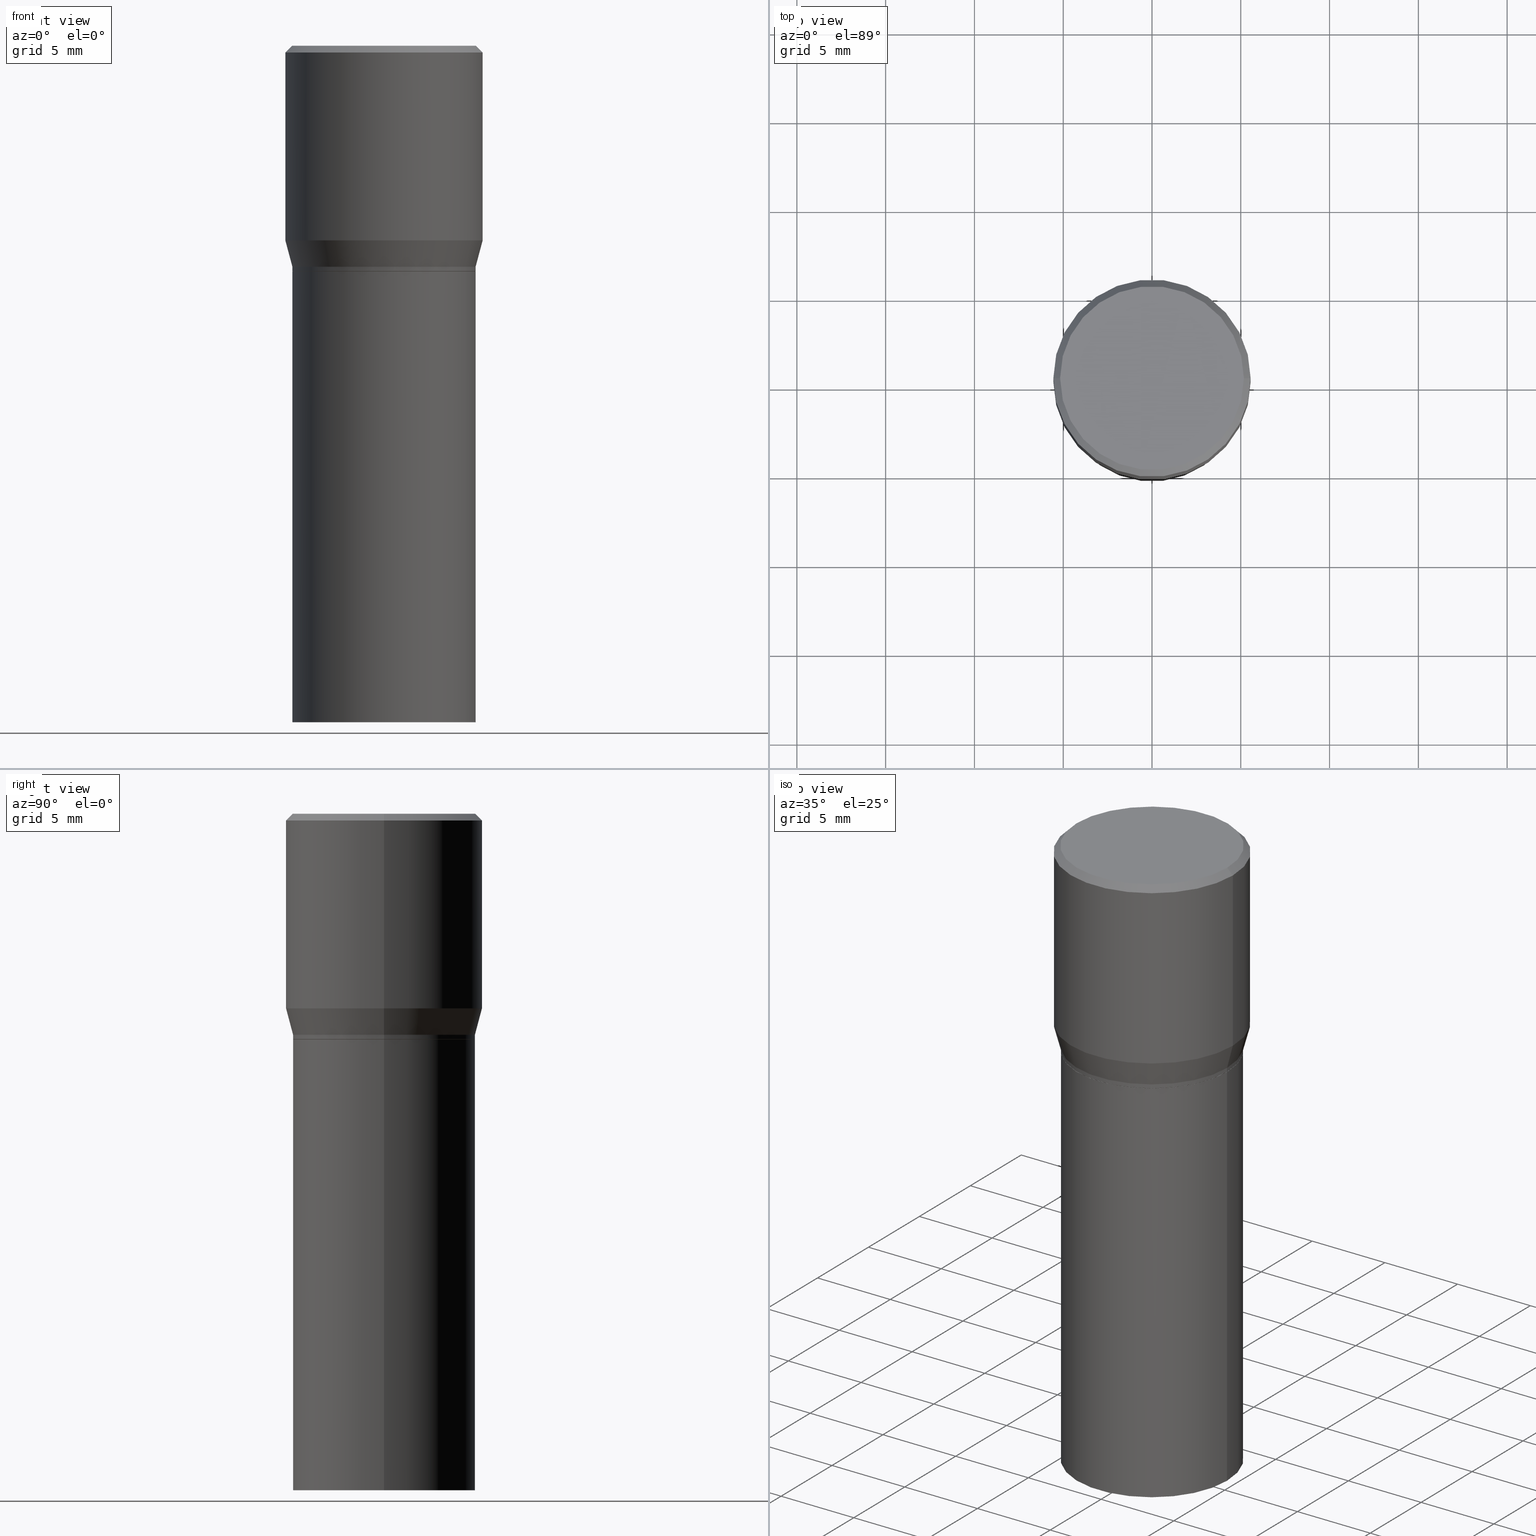
[diagram: canonical four-view strip — front | top / right | iso, engineering-drawing reading convention]
A machine part, canonical four-view strip (front | top / right | iso — engineering-drawing reading convention). The complete STEP part file that produces these views, byte-faithful:
ISO-10303-21;
HEADER;
FILE_DESCRIPTION (( 'STEP AP203' ),
    '1' );
FILE_NAME ('39351.STEP',
    '2024-03-12T18:59:55',
    ( '' ),
    ( '' ),
    'SwSTEP 2.0',
    'SolidWorks 2023',
    '' );
FILE_SCHEMA (( 'CONFIG_CONTROL_DESIGN' ));
ENDSEC;

DATA;
#1 = EDGE_CURVE ( 'NONE', #129, #3, #98, .T. ) ;
#2 = DIRECTION ( 'NONE',  ( 1.000000000000000000, -6.982962677686265133E-15, 0.000000000000000000 ) ) ;
#3 = VERTEX_POINT ( 'NONE', #119 ) ;
#4 = CARTESIAN_POINT ( 'NONE',  ( -0.2031000000000000583, -1.101508221355132898E-16, -0.4900000000000001021 ) ) ;
#5 = VECTOR ( 'NONE', #422, 39.37007874015748854 ) ;
#6 = CARTESIAN_POINT ( 'NONE',  ( 0.2031000000000000028, -1.418239719838080775E-15, 9.903515031641546145E-30 ) ) ;
#7 = CARTESIAN_POINT ( 'NONE',  ( 1.222734403092568719E-29, -1.745740669421573186E-15, -0.5000000000000001110 ) ) ;
#8 = PERSON_AND_ORGANIZATION ( #91, #67 ) ;
#9 = COORDINATED_UNIVERSAL_TIME_OFFSET ( 5, 0, .BEHIND. ) ;
#10 = FACE_OUTER_BOUND ( 'NONE', #403, .T. ) ;
#11 = LINE ( 'NONE', #161, #388 ) ;
#12 =( NAMED_UNIT ( * ) PLANE_ANGLE_UNIT ( ) SI_UNIT ( $, .RADIAN. ) );
#13 = ADVANCED_FACE ( 'NONE', ( #436 ), #65, .T. ) ;
#14 = AXIS2_PLACEMENT_3D ( 'NONE', #449, #177, #287 ) ;
#15 = CALENDAR_DATE ( 2024, 12, 3 ) ;
#16 = ORIENTED_EDGE ( 'NONE', *, *, #214, .F. ) ;
#17 = CALENDAR_DATE ( 2024, 12, 3 ) ;
#18 = ORIENTED_EDGE ( 'NONE', *, *, #460, .T. ) ;
#19 = CARTESIAN_POINT ( 'NONE',  ( 0.2031000000000000028, -3.163980389259653764E-15, -0.5000000000000001110 ) ) ;
#20 = PLANE ( 'NONE',  #452 ) ;
#21 = AXIS2_PLACEMENT_3D ( 'NONE', #198, #110, #122 ) ;
#22 = EDGE_LOOP ( 'NONE', ( #398, #429 ) ) ;
#23 = ORIENTED_EDGE ( 'NONE', *, *, #252, .T. ) ;
#24 = ADVANCED_FACE ( 'NONE', ( #109 ), #75, .T. ) ;
#25 = CIRCLE ( 'NONE', #104, 0.2031000000000000028 ) ;
#26 = CARTESIAN_POINT ( 'NONE',  ( 0.2031000000000000028, -3.162234648590232655E-15, -0.4995000000000001661 ) ) ;
#27 = DIRECTION ( 'NONE',  ( 1.000000000000000000, -6.982962677686268288E-15, 0.000000000000000000 ) ) ;
#28 = CARTESIAN_POINT ( 'NONE',  ( -0.2187500000000000000, 4.741191543335144142E-17, -0.4315934048615475138 ) ) ;
#29 = DIRECTION ( 'NONE',  ( -1.000000000000000000, 6.982962677686266711E-15, 0.000000000000000000 ) ) ;
#30 = CARTESIAN_POINT ( 'NONE',  ( 0.000000000000000000, 0.000000000000000000, 0.000000000000000000 ) ) ;
#31 = VECTOR ( 'NONE', #37, 39.37007874015748854 ) ;
#32 = EDGE_LOOP ( 'NONE', ( #415, #432, #111, #72 ) ) ;
#33 = DIRECTION ( 'NONE',  ( -2.445468806185136597E-29, 3.491481338843145583E-15, 1.000000000000000000 ) ) ;
#34 = DIRECTION ( 'NONE',  ( -2.445468806185136597E-29, 3.491481338843145583E-15, 1.000000000000000000 ) ) ;
#35 = DIRECTION ( 'NONE',  ( -2.445468806185136597E-29, 3.491481338843145583E-15, 1.000000000000000000 ) ) ;
#36 = CYLINDRICAL_SURFACE ( 'NONE', #199, 0.2031000000000000028 ) ;
#37 = DIRECTION ( 'NONE',  ( 0.2588190451025211836, 1.565188264969622559E-15, 0.9659258262890679791 ) ) ;
#38 = LINE ( 'NONE', #234, #370 ) ;
#39 = ADVANCED_FACE ( 'NONE', ( #120 ), #36, .T. ) ;
#40 = APPLICATION_PROTOCOL_DEFINITION ( 'international standard', 'config_control_design', 1994, #306 ) ;
#41 = CONICAL_SURFACE ( 'NONE', #353, 0.2026000000000000023, 0.7853981633974824739 ) ;
#42 = ORIENTED_EDGE ( 'NONE', *, *, #63, .T. ) ;
#43 = MECHANICAL_CONTEXT ( 'NONE', #306, 'mechanical' ) ;
#44 = CARTESIAN_POINT ( 'NONE',  ( 0.2031000000000000583, -3.129065575871222509E-15, -0.4900000000000001021 ) ) ;
#45 = DATE_TIME_ROLE ( 'classification_date' ) ;
#46 = CC_DESIGN_PERSON_AND_ORGANIZATION_ASSIGNMENT ( #235, #314, ( #437 ) ) ;
#47 = PLANE ( 'NONE',  #244 ) ;
#48 = PERSON_AND_ORGANIZATION_ROLE ( 'design_supplier' ) ;
#49 = AXIS2_PLACEMENT_3D ( 'NONE', #277, #310, #86 ) ;
#50 = AXIS2_PLACEMENT_3D ( 'NONE', #61, #419, #168 ) ;
#51 = DATE_AND_TIME ( #411, #89 ) ;
#52 = ADVANCED_FACE ( 'NONE', ( #438 ), #413, .T. ) ;
#53 = LINE ( 'NONE', #108, #99 ) ;
#54 = VERTEX_POINT ( 'NONE', #4 ) ;
#55 = FACE_OUTER_BOUND ( 'NONE', #464, .T. ) ;
#56 = CC_DESIGN_PERSON_AND_ORGANIZATION_ASSIGNMENT ( #124, #404, ( #241 ) ) ;
#57 = EDGE_CURVE ( 'NONE', #269, #176, #446, .T. ) ;
#58 = PLANE ( 'NONE',  #142 ) ;
#59 = EDGE_CURVE ( 'NONE', #269, #265, #38, .T. ) ;
#60 = VERTEX_POINT ( 'NONE', #44 ) ;
#61 = CARTESIAN_POINT ( 'NONE',  ( 0.000000000000000000, 0.000000000000000000, 0.000000000000000000 ) ) ;
#62 = MANIFOLD_SOLID_BREP ( 'Body-Move/Copy2[1]', #153 ) ;
#63 = EDGE_CURVE ( 'NONE', #151, #363, #308, .T. ) ;
#64 = CARTESIAN_POINT ( 'NONE',  ( -0.2187500000000000000, 1.554312234475219157E-15, -1.076017050993260622E-29 ) ) ;
#65 = CONICAL_SURFACE ( 'NONE', #266, 0.2031000000000000583, 0.2617993877991499074 ) ;
#66 = AXIS2_PLACEMENT_3D ( 'NONE', #264, #441, #409 ) ;
#67 = ORGANIZATION ( 'UNSPECIFIED', 'UNSPECIFIED', '' ) ;
#68 = DIRECTION ( 'NONE',  ( 1.000000000000000000, -6.982962677686266711E-15, 0.000000000000000000 ) ) ;
#69 = DIRECTION ( 'NONE',  ( 1.000000000000000000, -6.982962677686265922E-15, 0.000000000000000000 ) ) ;
#70 = EDGE_CURVE ( 'NONE', #450, #211, #11, .T. ) ;
#71 = ORIENTED_EDGE ( 'NONE', *, *, #319, .F. ) ;
#72 = ORIENTED_EDGE ( 'NONE', *, *, #356, .F. ) ;
#73 = AXIS2_PLACEMENT_3D ( 'NONE', #30, #216, #188 ) ;
#74 = ORIENTED_EDGE ( 'NONE', *, *, #162, .T. ) ;
#75 = CYLINDRICAL_SURFACE ( 'NONE', #323, 0.2031000000000000028 ) ;
#76 = EDGE_CURVE ( 'NONE', #54, #223, #451, .T. ) ;
#77 = ORIENTED_EDGE ( 'NONE', *, *, #303, .F. ) ;
#78 = APPROVAL_DATE_TIME ( #170, #280 ) ;
#79 = CARTESIAN_POINT ( 'NONE',  ( 0.000000000000000000, 0.000000000000000000, 0.000000000000000000 ) ) ;
#80 = CALENDAR_DATE ( 2024, 12, 3 ) ;
#81 = FACE_OUTER_BOUND ( 'NONE', #191, .T. ) ;
#82 = APPROVAL_PERSON_ORGANIZATION ( #84, #116, #439 ) ;
#83 = DIRECTION ( 'NONE',  ( -2.445468806185136597E-29, 3.491481338843145583E-15, 1.000000000000000000 ) ) ;
#84 = PERSON_AND_ORGANIZATION ( #91, #67 ) ;
#85 = ORIENTED_EDGE ( 'NONE', *, *, #221, .F. ) ;
#86 = DIRECTION ( 'NONE',  ( 1.000000000000000000, -6.982962677686268288E-15, 0.000000000000000000 ) ) ;
#87 = COORDINATED_UNIVERSAL_TIME_OFFSET ( 5, 0, .BEHIND. ) ;
#88 = CIRCLE ( 'NONE', #381, 0.2031000000000000028 ) ;
#89 = LOCAL_TIME ( 14, 59, 55.00000000000000000, #9 ) ;
#90 = FACE_OUTER_BOUND ( 'NONE', #97, .T. ) ;
#91 = PERSON ( 'UNSPECIFIED', 'UNSPECIFIED', 'UNSPECIFIED', ('UNSPECIFIED'), ('UNSPECIFIED'), ('UNSPECIFIED') ) ;
#92 = EDGE_LOOP ( 'NONE', ( #112, #355, #459, #281 ) ) ;
#93 = CARTESIAN_POINT ( 'NONE',  ( 1.222734403092568719E-29, -1.745740669421573186E-15, -0.5000000000000001110 ) ) ;
#94 = ADVANCED_FACE ( 'NONE', ( #246 ), #58, .F. ) ;
#95 = PLANE ( 'NONE',  #14 ) ;
#96 = CYLINDRICAL_SURFACE ( 'NONE', #50, 0.2187500000000000000 ) ;
#97 = EDGE_LOOP ( 'NONE', ( #226, #360 ) ) ;
#98 = CIRCLE ( 'NONE', #164, 0.2031000000000000028 ) ;
#99 = VECTOR ( 'NONE', #293, 39.37007874015748143 ) ;
#100 = ADVANCED_FACE ( 'NONE', ( #90 ), #95, .F. ) ;
#101 = CARTESIAN_POINT ( 'NONE',  ( 1.198279715030717173E-29, -1.710825856033141537E-15, -0.4900000000000001021 ) ) ;
#102 = LINE ( 'NONE', #184, #173 ) ;
#103 = AXIS2_PLACEMENT_3D ( 'NONE', #275, #367, #405 ) ;
#104 = AXIS2_PLACEMENT_3D ( 'NONE', #313, #181, #185 ) ;
#105 = DIRECTION ( 'NONE',  ( 1.000000000000000000, -6.982962677686264344E-15, 0.000000000000000000 ) ) ;
#106 = CC_DESIGN_DATE_AND_TIME_ASSIGNMENT ( #243, #45, ( #155 ) ) ;
#107 = ORIENTED_EDGE ( 'NONE', *, *, #63, .F. ) ;
#108 = CARTESIAN_POINT ( 'NONE',  ( 0.2187500000000000000, -1.553106157095169608E-15, -0.01499999999999999944 ) ) ;
#109 = FACE_OUTER_BOUND ( 'NONE', #32, .T. ) ;
#110 = DIRECTION ( 'NONE',  ( -2.445468806185136597E-29, 3.491481338843145583E-15, 1.000000000000000000 ) ) ;
#111 = ORIENTED_EDGE ( 'NONE', *, *, #396, .F. ) ;
#112 = ORIENTED_EDGE ( 'NONE', *, *, #57, .T. ) ;
#113 = ORIENTED_EDGE ( 'NONE', *, *, #1, .F. ) ;
#114 = AXIS2_PLACEMENT_3D ( 'NONE', #101, #457, #453 ) ;
#115 = FACE_OUTER_BOUND ( 'NONE', #395, .T. ) ;
#116 = APPROVAL ( #279, 'UNSPECIFIED' ) ;
#117 = CARTESIAN_POINT ( 'NONE',  ( 3.668203209277705088E-31, -5.237222008264718399E-17, -0.01499999999999999944 ) ) ;
#118 = ORIENTED_EDGE ( 'NONE', *, *, #303, .T. ) ;
#119 = CARTESIAN_POINT ( 'NONE',  ( -0.2031000000000000028, -2.048369042514382480E-15, -0.5000000000000001110 ) ) ;
#120 = FACE_OUTER_BOUND ( 'NONE', #157, .T. ) ;
#121 = DATE_AND_TIME ( #200, #183 ) ;
#122 = DIRECTION ( 'NONE',  ( 1.000000000000000000, -6.982962677686265133E-15, 0.000000000000000000 ) ) ;
#123 = CARTESIAN_POINT ( 'NONE',  ( 3.668203209277705088E-31, -5.237222008264718399E-17, -0.01499999999999999944 ) ) ;
#124 = PERSON_AND_ORGANIZATION ( #91, #67 ) ;
#125 = CONICAL_SURFACE ( 'NONE', #49, 0.2026000000000000023, 0.7853981633974824739 ) ;
#126 = CARTESIAN_POINT ( 'NONE',  ( 1.222734403092568719E-29, -1.745740669421573186E-15, -0.5000000000000001110 ) ) ;
#127 = PERSON_AND_ORGANIZATION ( #91, #67 ) ;
#128 = EDGE_CURVE ( 'NONE', #450, #427, #424, .T. ) ;
#129 = VERTEX_POINT ( 'NONE', #19 ) ;
#130 = CARTESIAN_POINT ( 'NONE',  ( 3.668203209277705088E-31, -5.237222008264718399E-17, -0.01499999999999999944 ) ) ;
#131 = PRODUCT_DEFINITION_SHAPE ( 'NONE', 'NONE',  #437 ) ;
#132 = CC_DESIGN_PERSON_AND_ORGANIZATION_ASSIGNMENT ( #305, #375, ( #354 ) ) ;
#133 = ORIENTED_EDGE ( 'NONE', *, *, #356, .T. ) ;
#134 = VERTEX_POINT ( 'NONE', #248 ) ;
#135 = ADVANCED_FACE ( 'NONE', ( #417 ), #96, .T. ) ;
#136 = EDGE_LOOP ( 'NONE', ( #297, #23, #418, #107 ) ) ;
#137 = CARTESIAN_POINT ( 'NONE',  ( 0.2187500000000000000, -3.034423404785738170E-15, -0.4315934048615475138 ) ) ;
#138 = CIRCLE ( 'NONE', #207, 0.2187500000000000000 ) ;
#139 = APPROVAL_PERSON_ORGANIZATION ( #127, #280, #210 ) ;
#140 = DIRECTION ( 'NONE',  ( -2.445468806185136597E-29, 3.491481338843145583E-15, 1.000000000000000000 ) ) ;
#141 = EDGE_CURVE ( 'NONE', #134, #129, #289, .T. ) ;
#142 = AXIS2_PLACEMENT_3D ( 'NONE', #448, #213, #412 ) ;
#143 = AXIS2_PLACEMENT_3D ( 'NONE', #344, #163, #232 ) ;
#144 = CARTESIAN_POINT ( 'NONE',  ( 1.222734403092568719E-29, -1.745740669421573186E-15, -0.5000000000000001110 ) ) ;
#145 =( LENGTH_UNIT ( ) NAMED_UNIT ( * ) SI_UNIT ( $, .METRE. ) );
#146 = LINE ( 'NONE', #261, #357 ) ;
#147 = ORIENTED_EDGE ( 'NONE', *, *, #76, .T. ) ;
#148 = DIRECTION ( 'NONE',  ( -0.7071067811865715536, 7.493145998870439357E-15, 0.7071067811865232589 ) ) ;
#149 = DIRECTION ( 'NONE',  ( -2.445468806185136597E-29, 3.491481338843145583E-15, 1.000000000000000000 ) ) ;
#150 = CC_DESIGN_PERSON_AND_ORGANIZATION_ASSIGNMENT ( #160, #48, ( #354 ) ) ;
#151 = VERTEX_POINT ( 'NONE', #137 ) ;
#152 = ORIENTED_EDGE ( 'NONE', *, *, #319, .T. ) ;
#153 = CLOSED_SHELL ( 'NONE', ( #254, #387, #358, #100 ) ) ;
#154 = CONICAL_SURFACE ( 'NONE', #399, 0.2031000000000000583, 0.2617993877991499074 ) ;
#155 = SECURITY_CLASSIFICATION ( '', '', #158 ) ;
#156 = CYLINDRICAL_SURFACE ( 'NONE', #257, 0.2031000000000000028 ) ;
#157 = EDGE_LOOP ( 'NONE', ( #159, #401, #133, #386 ) ) ;
#158 = SECURITY_CLASSIFICATION_LEVEL ( 'unclassified' ) ;
#159 = ORIENTED_EDGE ( 'NONE', *, *, #278, .F. ) ;
#160 = PERSON_AND_ORGANIZATION ( #91, #67 ) ;
#161 = CARTESIAN_POINT ( 'NONE',  ( -0.2187500000000000000, 1.475150865661223567E-15, -0.01499999999999999944 ) ) ;
#162 = EDGE_CURVE ( 'NONE', #363, #211, #406, .T. ) ;
#163 = DIRECTION ( 'NONE',  ( 0.000000000000000000, 0.000000000000000000, 1.000000000000000000 ) ) ;
#164 = AXIS2_PLACEMENT_3D ( 'NONE', #7, #33, #227 ) ;
#165 = AXIS2_PLACEMENT_3D ( 'NONE', #144, #34, #27 ) ;
#166 = DIRECTION ( 'NONE',  ( 1.000000000000000000, -6.982962677686265922E-15, 4.876176775795935793E-29 ) ) ;
#167 = APPROVAL_STATUS ( 'not_yet_approved' ) ;
#168 = DIRECTION ( 'NONE',  ( 1.000000000000000000, -6.982962677686266711E-15, 4.876176775795935232E-29 ) ) ;
#169 = FACE_OUTER_BOUND ( 'NONE', #315, .T. ) ;
#170 = DATE_AND_TIME ( #17, #392 ) ;
#171 = EDGE_CURVE ( 'NONE', #427, #363, #53, .T. ) ;
#172 = ORIENTED_EDGE ( 'NONE', *, *, #141, .T. ) ;
#173 = VECTOR ( 'NONE', #148, 39.37007874015748854 ) ;
#174 = CC_DESIGN_APPROVAL ( #208, ( #354 ) ) ;
#175 = DIRECTION ( 'NONE',  ( -2.445468806185136597E-29, 3.491481338843145583E-15, 1.000000000000000000 ) ) ;
#176 = VERTEX_POINT ( 'NONE', #186 ) ;
#177 = DIRECTION ( 'NONE',  ( 2.438088387897960049E-29, -3.491481338843145188E-15, -1.000000000000000000 ) ) ;
#178 = ORIENTED_EDGE ( 'NONE', *, *, #365, .T. ) ;
#179 = CARTESIAN_POINT ( 'NONE',  ( 0.2031000000000000028, -1.418239719838080775E-15, 9.903515031641546145E-30 ) ) ;
#180 = CIRCLE ( 'NONE', #165, 0.2026000000000000023 ) ;
#181 = DIRECTION ( 'NONE',  ( -2.445468806185136597E-29, 3.491481338843145583E-15, 1.000000000000000000 ) ) ;
#182 = CARTESIAN_POINT ( 'NONE',  ( -0.2031000000000000028, 1.443112296328763497E-15, -9.990357168307714203E-30 ) ) ;
#183 = LOCAL_TIME ( 14, 59, 55.00000000000000000, #340 ) ;
#184 = CARTESIAN_POINT ( 'NONE',  ( -0.2026000000000000023, -3.061810867716101928E-16, -0.5000000000000001110 ) ) ;
#185 = DIRECTION ( 'NONE',  ( 1.000000000000000000, -6.982962677686265922E-15, 0.000000000000000000 ) ) ;
#186 = CARTESIAN_POINT ( 'NONE',  ( -0.2026000000000000023, -3.035318595974993861E-16, -0.5000000000000001110 ) ) ;
#187 = ORIENTED_EDGE ( 'NONE', *, *, #193, .T. ) ;
#188 = DIRECTION ( 'NONE',  ( 1.000000000000000000, -6.982962677686266711E-15, 4.876176775795935793E-29 ) ) ;
#189 = CIRCLE ( 'NONE', #295, 0.2037499999999999867 ) ;
#190 =( GEOMETRIC_REPRESENTATION_CONTEXT ( 3 ) GLOBAL_UNCERTAINTY_ASSIGNED_CONTEXT ( ( #458 ) ) GLOBAL_UNIT_ASSIGNED_CONTEXT ( ( #443, #12, #274 ) ) REPRESENTATION_CONTEXT ( 'NONE', 'WORKASPACE' ) );
#191 = EDGE_LOOP ( 'NONE', ( #330, #369, #172, #351 ) ) ;
#192 = EDGE_CURVE ( 'NONE', #336, #3, #333, .T. ) ;
#193 = EDGE_CURVE ( 'NONE', #54, #60, #339, .T. ) ;
#194 = CARTESIAN_POINT ( 'NONE',  ( 1.198279715030717173E-29, -1.710825856033141537E-15, -0.4900000000000001021 ) ) ;
#195 = DIRECTION ( 'NONE',  ( 1.000000000000000000, -6.982962677686266711E-15, 4.875065411617369217E-29 ) ) ;
#196 = ORIENTED_EDGE ( 'NONE', *, *, #57, .F. ) ;
#197 = DIRECTION ( 'NONE',  ( 1.000000000000000000, -6.982962677686266711E-15, 4.876176775795935793E-29 ) ) ;
#198 = CARTESIAN_POINT ( 'NONE',  ( 1.055448208544146876E-29, -1.506900319041867721E-15, -0.4315934048615475138 ) ) ;
#199 = AXIS2_PLACEMENT_3D ( 'NONE', #466, #149, #197 ) ;
#200 = CALENDAR_DATE ( 2024, 12, 3 ) ;
#201 = CIRCLE ( 'NONE', #66, 0.2031000000000000028 ) ;
#202 = ORIENTED_EDGE ( 'NONE', *, *, #231, .F. ) ;
#203 = APPROVAL_DATE_TIME ( #121, #116 ) ;
#204 = ADVANCED_FACE ( 'NONE', ( #292 ), #154, .T. ) ;
#205 = CARTESIAN_POINT ( 'NONE',  ( 0.2187500000000000000, -1.527523085743870843E-15, 1.066663669705360885E-29 ) ) ;
#206 = CARTESIAN_POINT ( 'NONE',  ( 0.2037499999999999867, -1.475466312070559275E-15, 1.060151966214670170E-16 ) ) ;
#207 = AXIS2_PLACEMENT_3D ( 'NONE', #272, #35, #2 ) ;
#208 = APPROVAL ( #372, 'UNSPECIFIED' ) ;
#209 = DIRECTION ( 'NONE',  ( -2.445468806185136877E-29, 3.491481338843145188E-15, 1.000000000000000000 ) ) ;
#210 = APPROVAL_ROLE ( '' ) ;
#211 = VERTEX_POINT ( 'NONE', #258 ) ;
#212 = AXIS2_PLACEMENT_3D ( 'NONE', #130, #284, #383 ) ;
#213 = DIRECTION ( 'NONE',  ( 2.438088387897960049E-29, -3.491481338843145188E-15, -1.000000000000000000 ) ) ;
#214 = EDGE_CURVE ( 'NONE', #176, #444, #102, .T. ) ;
#215 = VECTOR ( 'NONE', #341, 39.37007874015748143 ) ;
#216 = DIRECTION ( 'NONE',  ( -2.445468806185136597E-29, 3.491481338843145583E-15, 1.000000000000000000 ) ) ;
#217 = EDGE_CURVE ( 'NONE', #444, #265, #361, .T. ) ;
#218 = DIRECTION ( 'NONE',  ( -2.445468806185136877E-29, 3.491481338843145188E-15, 1.000000000000000000 ) ) ;
#219 = DIRECTION ( 'NONE',  ( 1.000000000000000000, -6.982962677686264344E-15, 0.000000000000000000 ) ) ;
#220 = CARTESIAN_POINT ( 'NONE',  ( 3.668203209277705088E-31, -5.237222008264718399E-17, -0.01499999999999999944 ) ) ;
#221 = EDGE_CURVE ( 'NONE', #336, #134, #88, .T. ) ;
#222 = CARTESIAN_POINT ( 'NONE',  ( 0.2031000000000000583, -3.129065575871222509E-15, -0.4900000000000001021 ) ) ;
#223 = VERTEX_POINT ( 'NONE', #28 ) ;
#224 = CARTESIAN_POINT ( 'NONE',  ( -0.2037499999999999867, 1.448964755619900421E-15, 1.060151966214468518E-16 ) ) ;
#225 = ORIENTED_EDGE ( 'NONE', *, *, #460, .F. ) ;
#226 = ORIENTED_EDGE ( 'NONE', *, *, #1, .T. ) ;
#227 = DIRECTION ( 'NONE',  ( 1.000000000000000000, -6.982962677686265922E-15, 0.000000000000000000 ) ) ;
#228 = EDGE_LOOP ( 'NONE', ( #249, #187, #118, #71 ) ) ;
#229 = DIRECTION ( 'NONE',  ( -2.445468806185136877E-29, 3.491481338843145188E-15, 1.000000000000000000 ) ) ;
#230 = DIRECTION ( 'NONE',  ( -1.000000000000000000, 6.982962677686266711E-15, 0.000000000000000000 ) ) ;
#231 = EDGE_CURVE ( 'NONE', #211, #363, #440, .T. ) ;
#232 = DIRECTION ( 'NONE',  ( 1.000000000000000000, 0.000000000000000000, 0.000000000000000000 ) ) ;
#233 = VECTOR ( 'NONE', #326, 39.37007874015748143 ) ;
#234 = CARTESIAN_POINT ( 'NONE',  ( 0.2026000000000000023, -3.160488907920811151E-15, -0.5000000000000001110 ) ) ;
#235 = PERSON_AND_ORGANIZATION ( #91, #67 ) ;
#236 = DIRECTION ( 'NONE',  ( 1.000000000000000000, -6.982962677686265922E-15, 4.876176775795935793E-29 ) ) ;
#237 = APPROVAL_DATE_TIME ( #51, #208 ) ;
#238 = CC_DESIGN_DATE_AND_TIME_ASSIGNMENT ( #311, #408, ( #437 ) ) ;
#239 = CARTESIAN_POINT ( 'NONE',  ( 3.576687321579069994E-29, -5.368277968210015545E-15, -1.500000000000000222 ) ) ;
#240 = DIRECTION ( 'NONE',  ( -0.7071067811865452413, 2.468850131082233000E-15, -0.7071067811865497932 ) ) ;
#241 = PRODUCT ( '39351', '39351', '', ( #43 ) ) ;
#242 = CARTESIAN_POINT ( 'NONE',  ( 1.198279715030717173E-29, -1.710825856033141537E-15, -0.4900000000000001021 ) ) ;
#243 = DATE_AND_TIME ( #15, #400 ) ;
#244 = AXIS2_PLACEMENT_3D ( 'NONE', #126, #407, #166 ) ;
#245 = CC_DESIGN_APPROVAL ( #116, ( #437 ) ) ;
#246 = FACE_OUTER_BOUND ( 'NONE', #22, .T. ) ;
#247 = ORIENTED_EDGE ( 'NONE', *, *, #70, .F. ) ;
#248 = CARTESIAN_POINT ( 'NONE',  ( 0.2031000000000000028, -6.655461728102798952E-15, -1.500000000000000222 ) ) ;
#249 = ORIENTED_EDGE ( 'NONE', *, *, #76, .F. ) ;
#250 = VECTOR ( 'NONE', #218, 39.37007874015748143 ) ;
#251 = DIRECTION ( 'NONE',  ( -2.438088387897960049E-29, 3.491481338843145188E-15, 1.000000000000000000 ) ) ;
#252 = EDGE_CURVE ( 'NONE', #223, #211, #359, .T. ) ;
#253 = CARTESIAN_POINT ( 'NONE',  ( 1.221511668689476057E-29, -1.743994928752151682E-15, -0.4995000000000001661 ) ) ;
#254 = ADVANCED_FACE ( 'NONE', ( #329 ), #259, .T. ) ;
#255 = CARTESIAN_POINT ( 'NONE',  ( -0.2031000000000000028, -3.008826324233883330E-16, -0.4995000000000001661 ) ) ;
#256 = CARTESIAN_POINT ( 'NONE',  ( 3.668203209277704895E-29, -5.237222008264718177E-15, -1.500000000000000222 ) ) ;
#257 = AXIS2_PLACEMENT_3D ( 'NONE', #431, #268, #335 ) ;
#258 = CARTESIAN_POINT ( 'NONE',  ( -0.2187500000000000000, 7.746759649129616577E-16, -0.01499999999999999944 ) ) ;
#259 = CYLINDRICAL_SURFACE ( 'NONE', #73, 0.2031000000000000028 ) ;
#260 = ORIENTED_EDGE ( 'NONE', *, *, #192, .T. ) ;
#261 = CARTESIAN_POINT ( 'NONE',  ( -0.2031000000000000028, 1.443112296328763497E-15, -9.990357168307714203E-30 ) ) ;
#262 = ORIENTED_EDGE ( 'NONE', *, *, #141, .F. ) ;
#263 = ORIENTED_EDGE ( 'NONE', *, *, #231, .T. ) ;
#264 = CARTESIAN_POINT ( 'NONE',  ( 1.221511668689476057E-29, -1.743994928752151682E-15, -0.4995000000000001661 ) ) ;
#265 = VERTEX_POINT ( 'NONE', #26 ) ;
#266 = AXIS2_PLACEMENT_3D ( 'NONE', #194, #83, #366 ) ;
#267 = CYLINDRICAL_SURFACE ( 'NONE', #420, 0.2187500000000000000 ) ;
#268 = DIRECTION ( 'NONE',  ( -2.445468806185136597E-29, 3.491481338843145583E-15, 1.000000000000000000 ) ) ;
#269 = VERTEX_POINT ( 'NONE', #461 ) ;
#270 = DIRECTION ( 'NONE',  ( -2.445468806185136597E-29, 3.491481338843145583E-15, 1.000000000000000000 ) ) ;
#271 = APPLICATION_PROTOCOL_DEFINITION ( 'international standard', 'config_control_design', 1994, #445 ) ;
#272 = CARTESIAN_POINT ( 'NONE',  ( 1.055448208544146876E-29, -1.506900319041867721E-15, -0.4315934048615475138 ) ) ;
#273 = ORIENTED_EDGE ( 'NONE', *, *, #322, .F. ) ;
#274 =( NAMED_UNIT ( * ) SI_UNIT ( $, .STERADIAN. ) SOLID_ANGLE_UNIT ( ) );
#275 = CARTESIAN_POINT ( 'NONE',  ( 1.222734403092568719E-29, -1.745740669421573186E-15, -0.5000000000000001110 ) ) ;
#276 = AXIS2_PLACEMENT_3D ( 'NONE', #220, #393, #68 ) ;
#277 = CARTESIAN_POINT ( 'NONE',  ( 1.222734403092568719E-29, -1.745740669421573186E-15, -0.5000000000000001110 ) ) ;
#278 = EDGE_CURVE ( 'NONE', #444, #54, #146, .T. ) ;
#279 = APPROVAL_STATUS ( 'not_yet_approved' ) ;
#280 = APPROVAL ( #167, 'UNSPECIFIED' ) ;
#281 = ORIENTED_EDGE ( 'NONE', *, *, #59, .F. ) ;
#282 = FACE_OUTER_BOUND ( 'NONE', #285, .T. ) ;
#283 = DIRECTION ( 'NONE',  ( 1.000000000000000000, -6.982962677686266711E-15, 4.876176775795935232E-29 ) ) ;
#284 = DIRECTION ( 'NONE',  ( -2.445468806185136597E-29, 3.491481338843145583E-15, 1.000000000000000000 ) ) ;
#285 = EDGE_LOOP ( 'NONE', ( #16, #178, #364, #435 ) ) ;
#286 = EDGE_CURVE ( 'NONE', #265, #444, #201, .T. ) ;
#287 = DIRECTION ( 'NONE',  ( -1.000000000000000000, 6.982962677686265922E-15, -4.876176775795935793E-29 ) ) ;
#288 = ORIENTED_EDGE ( 'NONE', *, *, #365, .F. ) ;
#289 = LINE ( 'NONE', #179, #324 ) ;
#290 = ORIENTED_EDGE ( 'NONE', *, *, #376, .F. ) ;
#291 = LENGTH_MEASURE_WITH_UNIT ( LENGTH_MEASURE( 0.02539999999999999897 ), #145 );
#292 = FACE_OUTER_BOUND ( 'NONE', #346, .T. ) ;
#293 = DIRECTION ( 'NONE',  ( 0.7071067811865452413, -7.319954787623248157E-15, -0.7071067811865497932 ) ) ;
#294 = ADVANCED_FACE ( 'NONE', ( #10 ), #345, .T. ) ;
#295 = AXIS2_PLACEMENT_3D ( 'NONE', #296, #426, #195 ) ;
#296 = CARTESIAN_POINT ( 'NONE',  ( -2.592568563193567003E-45, 3.701500806376036554E-31, 1.060151966214568974E-16 ) ) ;
#297 = ORIENTED_EDGE ( 'NONE', *, *, #322, .T. ) ;
#298 = ORIENTED_EDGE ( 'NONE', *, *, #171, .T. ) ;
#299 = LINE ( 'NONE', #6, #391 ) ;
#300 = EDGE_LOOP ( 'NONE', ( #18, #260, #113, #262 ) ) ;
#301 = ORIENTED_EDGE ( 'NONE', *, *, #396, .T. ) ;
#302 = AXIS2_PLACEMENT_3D ( 'NONE', #117, #397, #29 ) ;
#303 = EDGE_CURVE ( 'NONE', #60, #151, #463, .T. ) ;
#304 = ORIENTED_EDGE ( 'NONE', *, *, #128, .F. ) ;
#305 = PERSON_AND_ORGANIZATION ( #91, #67 ) ;
#306 = APPLICATION_CONTEXT ( 'configuration controlled 3d designs of mechanical parts and assemblies' ) ;
#307 = PERSON_AND_ORGANIZATION_ROLE ( 'classification_officer' ) ;
#308 = LINE ( 'NONE', #205, #215 ) ;
#309 = CLOSED_SHELL ( 'NONE', ( #24, #382, #294, #135, #204, #13, #377, #52, #94, #423, #389, #39 ) ) ;
#310 = DIRECTION ( 'NONE',  ( -2.445468806185136597E-29, 3.491481338843145583E-15, 1.000000000000000000 ) ) ;
#311 = DATE_AND_TIME ( #80, #320 ) ;
#312 = CIRCLE ( 'NONE', #21, 0.2187500000000000000 ) ;
#313 = CARTESIAN_POINT ( 'NONE',  ( 1.222734403092568719E-29, -1.745740669421573186E-15, -0.5000000000000001110 ) ) ;
#314 = PERSON_AND_ORGANIZATION_ROLE ( 'creator' ) ;
#315 = EDGE_LOOP ( 'NONE', ( #196, #288 ) ) ;
#316 = PERSON_AND_ORGANIZATION ( #91, #67 ) ;
#317 = ORIENTED_EDGE ( 'NONE', *, *, #171, .F. ) ;
#318 = AXIS2_PLACEMENT_3D ( 'NONE', #253, #454, #425 ) ;
#319 = EDGE_CURVE ( 'NONE', #223, #151, #312, .T. ) ;
#320 = LOCAL_TIME ( 14, 59, 55.00000000000000000, #342 ) ;
#321 = ORIENTED_EDGE ( 'NONE', *, *, #252, .F. ) ;
#322 = EDGE_CURVE ( 'NONE', #151, #223, #138, .T. ) ;
#323 = AXIS2_PLACEMENT_3D ( 'NONE', #79, #270, #334 ) ;
#324 = VECTOR ( 'NONE', #209, 39.37007874015748143 ) ;
#325 = AXIS2_PLACEMENT_3D ( 'NONE', #242, #347, #343 ) ;
#326 = DIRECTION ( 'NONE',  ( -2.445468806185136877E-29, 3.491481338843145188E-15, 1.000000000000000000 ) ) ;
#327 = DIRECTION ( 'NONE',  ( -2.445468806185136877E-29, 3.491481338843145188E-15, 1.000000000000000000 ) ) ;
#328 = CARTESIAN_POINT ( 'NONE',  ( 3.668203209277704895E-29, -5.237222008264718177E-15, -1.500000000000000222 ) ) ;
#329 = FACE_OUTER_BOUND ( 'NONE', #300, .T. ) ;
#330 = ORIENTED_EDGE ( 'NONE', *, *, #192, .F. ) ;
#331 = AXIS2_PLACEMENT_3D ( 'NONE', #352, #175, #380 ) ;
#332 = DIRECTION ( 'NONE',  ( -2.445468806185136597E-29, 3.491481338843145583E-15, 1.000000000000000000 ) ) ;
#333 = LINE ( 'NONE', #182, #233 ) ;
#334 = DIRECTION ( 'NONE',  ( 1.000000000000000000, -6.982962677686266711E-15, 4.876176775795935793E-29 ) ) ;
#335 = DIRECTION ( 'NONE',  ( 1.000000000000000000, -6.982962677686266711E-15, 4.876176775795935793E-29 ) ) ;
#336 = VERTEX_POINT ( 'NONE', #338 ) ;
#337 = DIRECTION ( 'NONE',  ( 2.445468806185136597E-29, -3.491481338843145583E-15, -1.000000000000000000 ) ) ;
#338 = CARTESIAN_POINT ( 'NONE',  ( -0.2031000000000000028, -2.048369042514382480E-15, -1.500000000000000222 ) ) ;
#339 = CIRCLE ( 'NONE', #114, 0.2031000000000000583 ) ;
#340 = COORDINATED_UNIVERSAL_TIME_OFFSET ( 5, 0, .BEHIND. ) ;
#341 = DIRECTION ( 'NONE',  ( -2.445468806185136877E-29, 3.491481338843145188E-15, 1.000000000000000000 ) ) ;
#342 = COORDINATED_UNIVERSAL_TIME_OFFSET ( 5, 0, .BEHIND. ) ;
#343 = DIRECTION ( 'NONE',  ( 1.000000000000000000, -6.982962677686265922E-15, 0.000000000000000000 ) ) ;
#344 = CARTESIAN_POINT ( 'NONE',  ( 0.000000000000000000, 0.000000000000000000, 0.000000000000000000 ) ) ;
#345 = CONICAL_SURFACE ( 'NONE', #302, 0.2187500000000000000, 0.7853981633974450594 ) ;
#346 = EDGE_LOOP ( 'NONE', ( #301, #147, #273, #77 ) ) ;
#347 = DIRECTION ( 'NONE',  ( -2.445468806185136597E-29, 3.491481338843145583E-15, 1.000000000000000000 ) ) ;
#348 = COORDINATED_UNIVERSAL_TIME_OFFSET ( 5, 0, .BEHIND. ) ;
#349 = CARTESIAN_POINT ( 'NONE',  ( -0.2031000000000000583, -2.677135597043777931E-16, -0.4900000000000001021 ) ) ;
#350 = CC_DESIGN_PERSON_AND_ORGANIZATION_ASSIGNMENT ( #316, #307, ( #155 ) ) ;
#351 = ORIENTED_EDGE ( 'NONE', *, *, #434, .F. ) ;
#352 = CARTESIAN_POINT ( 'NONE',  ( -2.592568563193567003E-45, 3.701500806376036554E-31, 1.060151966214568974E-16 ) ) ;
#353 = AXIS2_PLACEMENT_3D ( 'NONE', #93, #442, #385 ) ;
#354 = PRODUCT_DEFINITION_FORMATION_WITH_SPECIFIED_SOURCE ( 'ANY', '', #241, .NOT_KNOWN. ) ;
#355 = ORIENTED_EDGE ( 'NONE', *, *, #214, .T. ) ;
#356 = EDGE_CURVE ( 'NONE', #265, #60, #299, .T. ) ;
#357 = VECTOR ( 'NONE', #327, 39.37007874015748143 ) ;
#358 = ADVANCED_FACE ( 'NONE', ( #81 ), #156, .T. ) ;
#359 = LINE ( 'NONE', #64, #250 ) ;
#360 = ORIENTED_EDGE ( 'NONE', *, *, #434, .T. ) ;
#361 = CIRCLE ( 'NONE', #318, 0.2031000000000000028 ) ;
#362 = CC_DESIGN_SECURITY_CLASSIFICATION ( #155, ( #354 ) ) ;
#363 = VERTEX_POINT ( 'NONE', #462 ) ;
#364 = ORIENTED_EDGE ( 'NONE', *, *, #59, .T. ) ;
#365 = EDGE_CURVE ( 'NONE', #176, #269, #180, .T. ) ;
#366 = DIRECTION ( 'NONE',  ( 1.000000000000000000, -6.982962677686265922E-15, 0.000000000000000000 ) ) ;
#367 = DIRECTION ( 'NONE',  ( -2.445468806185136597E-29, 3.491481338843145583E-15, 1.000000000000000000 ) ) ;
#368 = SHAPE_DEFINITION_REPRESENTATION ( #131, #390 ) ;
#369 = ORIENTED_EDGE ( 'NONE', *, *, #221, .T. ) ;
#370 = VECTOR ( 'NONE', #374, 39.37007874015748854 ) ;
#371 = APPROVAL_PERSON_ORGANIZATION ( #8, #208, #379 ) ;
#372 = APPROVAL_STATUS ( 'not_yet_approved' ) ;
#373 = MANIFOLD_SOLID_BREP ( 'Body-Move/Copy2[2]', #309 ) ;
#374 = DIRECTION ( 'NONE',  ( 0.7071067811865715536, -2.468850131082509496E-15, 0.7071067811865232589 ) ) ;
#375 = PERSON_AND_ORGANIZATION_ROLE ( 'creator' ) ;
#376 = EDGE_CURVE ( 'NONE', #427, #450, #189, .T. ) ;
#377 = ADVANCED_FACE ( 'NONE', ( #115 ), #267, .T. ) ;
#378 = DIMENSIONAL_EXPONENTS ( 1.000000000000000000, 0.000000000000000000, 0.000000000000000000, 0.000000000000000000, 0.000000000000000000, 0.000000000000000000, 0.000000000000000000 ) ;
#379 = APPROVAL_ROLE ( '' ) ;
#380 = DIRECTION ( 'NONE',  ( 1.000000000000000000, -6.982962677686266711E-15, 4.875065411617369217E-29 ) ) ;
#381 = AXIS2_PLACEMENT_3D ( 'NONE', #256, #332, #105 ) ;
#382 = ADVANCED_FACE ( 'NONE', ( #416 ), #41, .T. ) ;
#383 = DIRECTION ( 'NONE',  ( 1.000000000000000000, -6.982962677686266711E-15, 0.000000000000000000 ) ) ;
#384 = EDGE_LOOP ( 'NONE', ( #317, #304, #394, #263 ) ) ;
#385 = DIRECTION ( 'NONE',  ( 1.000000000000000000, -6.982962677686268288E-15, 0.000000000000000000 ) ) ;
#386 = ORIENTED_EDGE ( 'NONE', *, *, #193, .F. ) ;
#387 = ADVANCED_FACE ( 'NONE', ( #55 ), #20, .F. ) ;
#388 = VECTOR ( 'NONE', #240, 39.37007874015748143 ) ;
#389 = ADVANCED_FACE ( 'NONE', ( #282 ), #125, .T. ) ;
#390 = ADVANCED_BREP_SHAPE_REPRESENTATION ( '39351', ( #62, #373, #143 ), #190 ) ;
#391 = VECTOR ( 'NONE', #229, 39.37007874015748143 ) ;
#392 = LOCAL_TIME ( 14, 59, 55.00000000000000000, #348 ) ;
#393 = DIRECTION ( 'NONE',  ( -2.445468806185136597E-29, 3.491481338843145583E-15, 1.000000000000000000 ) ) ;
#394 = ORIENTED_EDGE ( 'NONE', *, *, #70, .T. ) ;
#395 = EDGE_LOOP ( 'NONE', ( #321, #152, #42, #202 ) ) ;
#396 = EDGE_CURVE ( 'NONE', #60, #54, #430, .T. ) ;
#397 = DIRECTION ( 'NONE',  ( 2.445468806185136597E-29, -3.491481338843145583E-15, -1.000000000000000000 ) ) ;
#398 = ORIENTED_EDGE ( 'NONE', *, *, #128, .T. ) ;
#399 = AXIS2_PLACEMENT_3D ( 'NONE', #465, #140, #69 ) ;
#400 = LOCAL_TIME ( 14, 59, 55.00000000000000000, #87 ) ;
#401 = ORIENTED_EDGE ( 'NONE', *, *, #217, .T. ) ;
#402 = DESIGN_CONTEXT ( 'detailed design', #445, 'design' ) ;
#403 = EDGE_LOOP ( 'NONE', ( #290, #298, #74, #247 ) ) ;
#404 = PERSON_AND_ORGANIZATION_ROLE ( 'design_owner' ) ;
#405 = DIRECTION ( 'NONE',  ( 1.000000000000000000, -6.982962677686268288E-15, 0.000000000000000000 ) ) ;
#406 = CIRCLE ( 'NONE', #212, 0.2187500000000000000 ) ;
#407 = DIRECTION ( 'NONE',  ( -2.438088387897960049E-29, 3.491481338843145188E-15, 1.000000000000000000 ) ) ;
#408 = DATE_TIME_ROLE ( 'creation_date' ) ;
#409 = DIRECTION ( 'NONE',  ( 1.000000000000000000, -6.982962677686266711E-15, 0.000000000000000000 ) ) ;
#410 = DIRECTION ( 'NONE',  ( -2.445468806185136597E-29, 3.491481338843145583E-15, 1.000000000000000000 ) ) ;
#411 = CALENDAR_DATE ( 2024, 12, 3 ) ;
#412 = DIRECTION ( 'NONE',  ( -1.000000000000000000, 6.982962677686265922E-15, -4.876176775795935793E-29 ) ) ;
#413 = CONICAL_SURFACE ( 'NONE', #447, 0.2187500000000000000, 0.7853981633974450594 ) ;
#414 = CC_DESIGN_APPROVAL ( #280, ( #155 ) ) ;
#415 = ORIENTED_EDGE ( 'NONE', *, *, #286, .T. ) ;
#416 = FACE_OUTER_BOUND ( 'NONE', #92, .T. ) ;
#417 = FACE_OUTER_BOUND ( 'NONE', #136, .T. ) ;
#418 = ORIENTED_EDGE ( 'NONE', *, *, #162, .F. ) ;
#419 = DIRECTION ( 'NONE',  ( -2.445468806185136597E-29, 3.491481338843145583E-15, 1.000000000000000000 ) ) ;
#420 = AXIS2_PLACEMENT_3D ( 'NONE', #455, #410, #283 ) ;
#421 = CIRCLE ( 'NONE', #433, 0.2031000000000000028 ) ;
#422 = DIRECTION ( 'NONE',  ( -0.2588190451025211836, 5.211531920934547886E-15, 0.9659258262890679791 ) ) ;
#423 = ADVANCED_FACE ( 'NONE', ( #169 ), #47, .F. ) ;
#424 = CIRCLE ( 'NONE', #331, 0.2037499999999999867 ) ;
#425 = DIRECTION ( 'NONE',  ( 1.000000000000000000, -6.982962677686266711E-15, 0.000000000000000000 ) ) ;
#426 = DIRECTION ( 'NONE',  ( -2.445468806185136597E-29, 3.491481338843145583E-15, 1.000000000000000000 ) ) ;
#427 = VERTEX_POINT ( 'NONE', #206 ) ;
#428 = PRODUCT_RELATED_PRODUCT_CATEGORY ( 'detail', '', ( #241 ) ) ;
#429 = ORIENTED_EDGE ( 'NONE', *, *, #376, .T. ) ;
#430 = CIRCLE ( 'NONE', #325, 0.2031000000000000583 ) ;
#431 = CARTESIAN_POINT ( 'NONE',  ( 0.000000000000000000, 0.000000000000000000, 0.000000000000000000 ) ) ;
#432 = ORIENTED_EDGE ( 'NONE', *, *, #278, .T. ) ;
#433 = AXIS2_PLACEMENT_3D ( 'NONE', #328, #456, #219 ) ;
#434 = EDGE_CURVE ( 'NONE', #3, #129, #25, .T. ) ;
#435 = ORIENTED_EDGE ( 'NONE', *, *, #217, .F. ) ;
#436 = FACE_OUTER_BOUND ( 'NONE', #228, .T. ) ;
#437 = PRODUCT_DEFINITION ( 'UNKNOWN', '', #354, #402 ) ;
#438 = FACE_OUTER_BOUND ( 'NONE', #384, .T. ) ;
#439 = APPROVAL_ROLE ( '' ) ;
#440 = CIRCLE ( 'NONE', #276, 0.2187500000000000000 ) ;
#441 = DIRECTION ( 'NONE',  ( -2.445468806185136597E-29, 3.491481338843145583E-15, 1.000000000000000000 ) ) ;
#442 = DIRECTION ( 'NONE',  ( -2.445468806185136597E-29, 3.491481338843145583E-15, 1.000000000000000000 ) ) ;
#443 =( CONVERSION_BASED_UNIT ( 'INCH', #291 ) LENGTH_UNIT ( ) NAMED_UNIT ( #378 ) );
#444 = VERTEX_POINT ( 'NONE', #255 ) ;
#445 = APPLICATION_CONTEXT ( 'configuration controlled 3d designs of mechanical parts and assemblies' ) ;
#446 = CIRCLE ( 'NONE', #103, 0.2026000000000000023 ) ;
#447 = AXIS2_PLACEMENT_3D ( 'NONE', #123, #337, #230 ) ;
#448 = CARTESIAN_POINT ( 'NONE',  ( 1.422778645578576487E-15, 0.2037499999999999867, -6.583817244785623957E-16 ) ) ;
#449 = CARTESIAN_POINT ( 'NONE',  ( 1.418239719838093003E-15, 0.2030999999999982819, -0.5000000000000007772 ) ) ;
#450 = VERTEX_POINT ( 'NONE', #224 ) ;
#451 = LINE ( 'NONE', #349, #5 ) ;
#452 = AXIS2_PLACEMENT_3D ( 'NONE', #239, #251, #236 ) ;
#453 = DIRECTION ( 'NONE',  ( 1.000000000000000000, -6.982962677686265922E-15, 0.000000000000000000 ) ) ;
#454 = DIRECTION ( 'NONE',  ( -2.445468806185136597E-29, 3.491481338843145583E-15, 1.000000000000000000 ) ) ;
#455 = CARTESIAN_POINT ( 'NONE',  ( 0.000000000000000000, 0.000000000000000000, 0.000000000000000000 ) ) ;
#456 = DIRECTION ( 'NONE',  ( -2.445468806185136597E-29, 3.491481338843145583E-15, 1.000000000000000000 ) ) ;
#457 = DIRECTION ( 'NONE',  ( -2.445468806185136597E-29, 3.491481338843145583E-15, 1.000000000000000000 ) ) ;
#458 = UNCERTAINTY_MEASURE_WITH_UNIT (LENGTH_MEASURE( 1.000000000000000082E-05 ), #443, 'distance_accuracy_value', 'NONE');
#459 = ORIENTED_EDGE ( 'NONE', *, *, #286, .F. ) ;
#460 = EDGE_CURVE ( 'NONE', #134, #336, #421, .T. ) ;
#461 = CARTESIAN_POINT ( 'NONE',  ( 0.2026000000000000023, -3.160488907920811151E-15, -0.5000000000000001110 ) ) ;
#462 = CARTESIAN_POINT ( 'NONE',  ( 0.2187500000000000000, -1.579895305826517922E-15, -0.01499999999999999944 ) ) ;
#463 = LINE ( 'NONE', #222, #31 ) ;
#464 = EDGE_LOOP ( 'NONE', ( #225, #85 ) ) ;
#465 = CARTESIAN_POINT ( 'NONE',  ( 1.198279715030717173E-29, -1.710825856033141537E-15, -0.4900000000000001021 ) ) ;
#466 = CARTESIAN_POINT ( 'NONE',  ( 0.000000000000000000, 0.000000000000000000, 0.000000000000000000 ) ) ;
ENDSEC;
END-ISO-10303-21;
